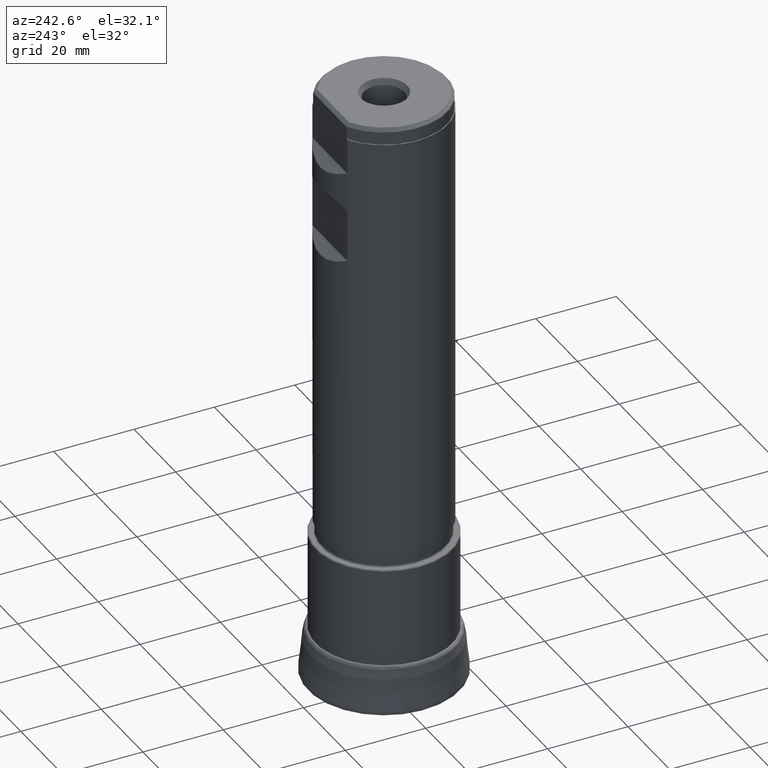
[diagram: clean part render]
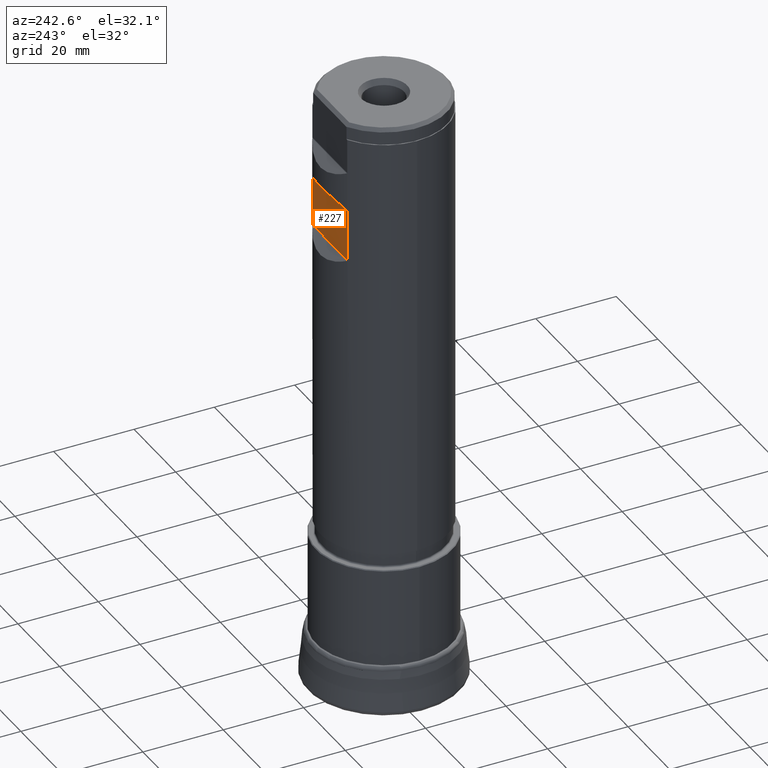
[diagram: same view with one face highlighted and labeled with its STEP entity id]
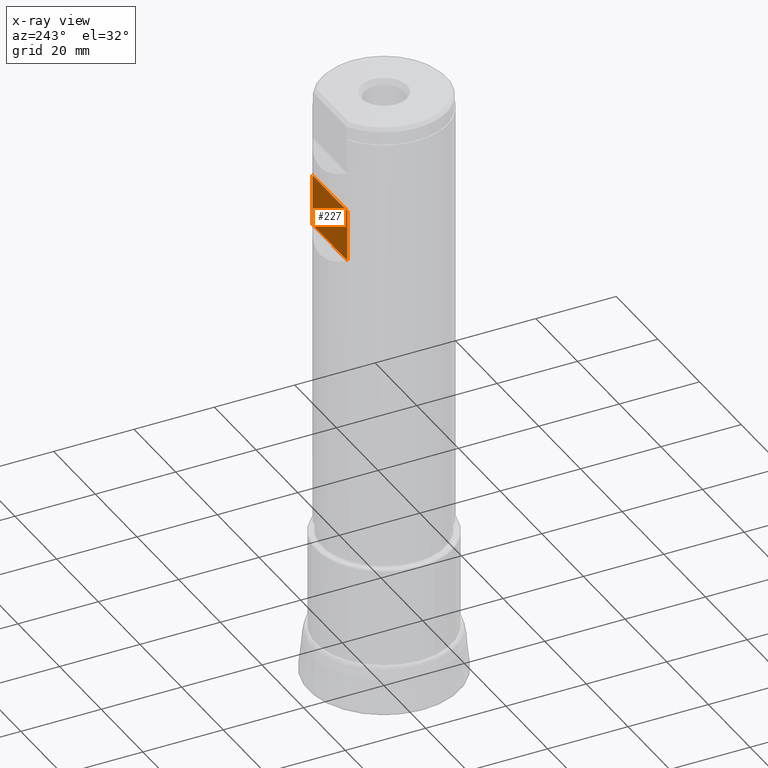
[diagram: x-ray of the same camera — body ghosted, the highlighted face saturated]
A machine part, auxiliary view. The second image highlights one B-rep face of the part: STEP entity #227.
The next image is the same camera in x-ray: the body ghosted, the highlighted face saturated — about 0% of this face is hidden behind the body in this view.
In plain terms, the highlighted planar face has unit normal (0, 1, 0).
Its self-contained STEP definition (entity closure, byte-faithful):
#116=PLANE('',#901);
#131=FACE_OUTER_BOUND('',#489,.T.);
#158=LINE('',#1381,#178);
#161=LINE('',#1431,#181);
#162=LINE('',#1449,#182);
#163=LINE('',#1450,#183);
#178=VECTOR('',#1051,1.);
#181=VECTOR('',#1056,1.);
#182=VECTOR('',#1063,1.);
#183=VECTOR('',#1064,1.);
#227=ADVANCED_FACE('',(#131),#116,.T.);
#489=EDGE_LOOP('',(#603,#604,#605,#606));
#603=ORIENTED_EDGE('',*,*,#786,.T.);
#604=ORIENTED_EDGE('',*,*,#777,.T.);
#605=ORIENTED_EDGE('',*,*,#787,.T.);
#606=ORIENTED_EDGE('',*,*,#783,.T.);
#711=VERTEX_POINT('',#1382);
#712=VERTEX_POINT('',#1383);
#717=VERTEX_POINT('',#1430);
#718=VERTEX_POINT('',#1432);
#777=EDGE_CURVE('',#711,#712,#158,.T.);
#783=EDGE_CURVE('',#718,#717,#161,.T.);
#786=EDGE_CURVE('',#717,#711,#162,.T.);
#787=EDGE_CURVE('',#712,#718,#163,.T.);
#901=AXIS2_PLACEMENT_3D('',#1451,#1065,#1066);
#1051=DIRECTION('',(-1.,6.62951273314672E-17,-1.97215226305253E-31));
#1056=DIRECTION('',(1.,-6.62951273314672E-17,1.97215226305253E-31));
#1063=DIRECTION('',(0.,0.,-1.));
#1064=DIRECTION('',(0.,0.,1.));
#1065=DIRECTION('',(6.62951273314672E-17,1.,1.30744085396108E-47));
#1066=DIRECTION('',(0.,0.,1.));
#1381=CARTESIAN_POINT('',(17.5,13.4874,116.999189068712));
#1382=CARTESIAN_POINT('',(8.37291264972947,13.4874,116.999189068712));
#1383=CARTESIAN_POINT('',(-8.37291264972947,13.4874,116.999189068712));
#1430=CARTESIAN_POINT('',(8.37291264972947,13.4874,129.857060931288));
#1431=CARTESIAN_POINT('',(17.5,13.4874,129.857060931288));
#1432=CARTESIAN_POINT('',(-8.37291264972947,13.4874,129.857060931288));
#1449=CARTESIAN_POINT('',(8.37291264972947,13.4874,152.4));
#1450=CARTESIAN_POINT('',(-8.37291264972947,13.4874,152.4));
#1451=CARTESIAN_POINT('',(17.5,13.4874,129.981325));